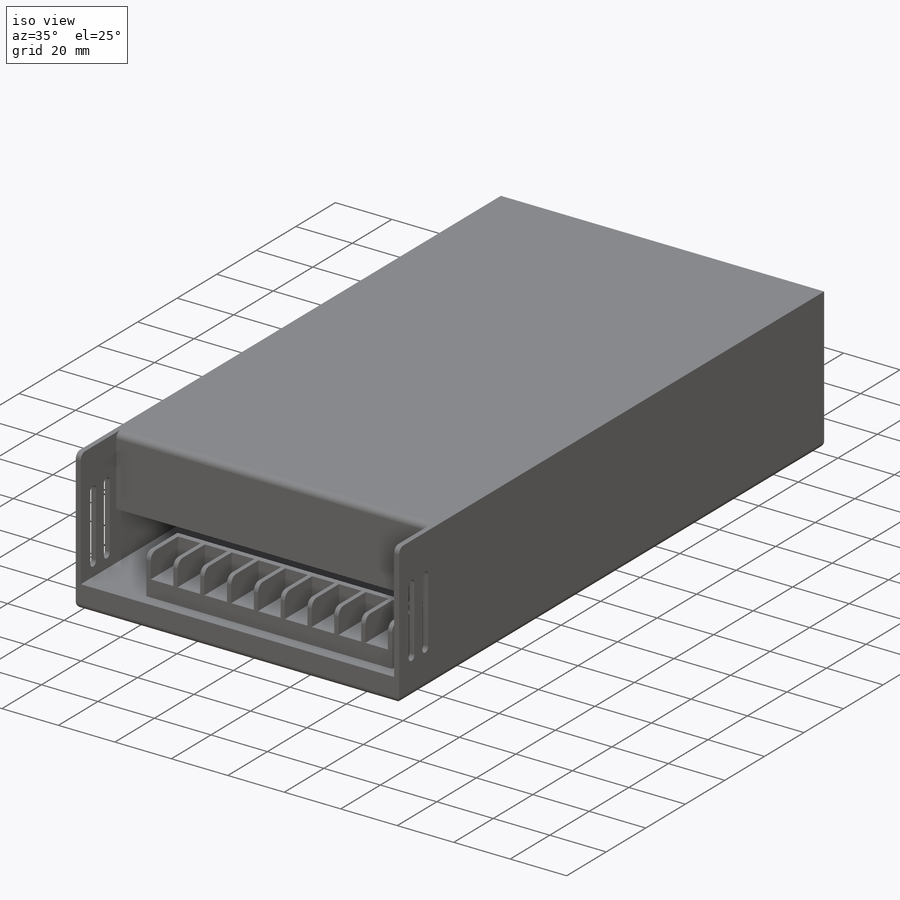
[diagram: iso view]
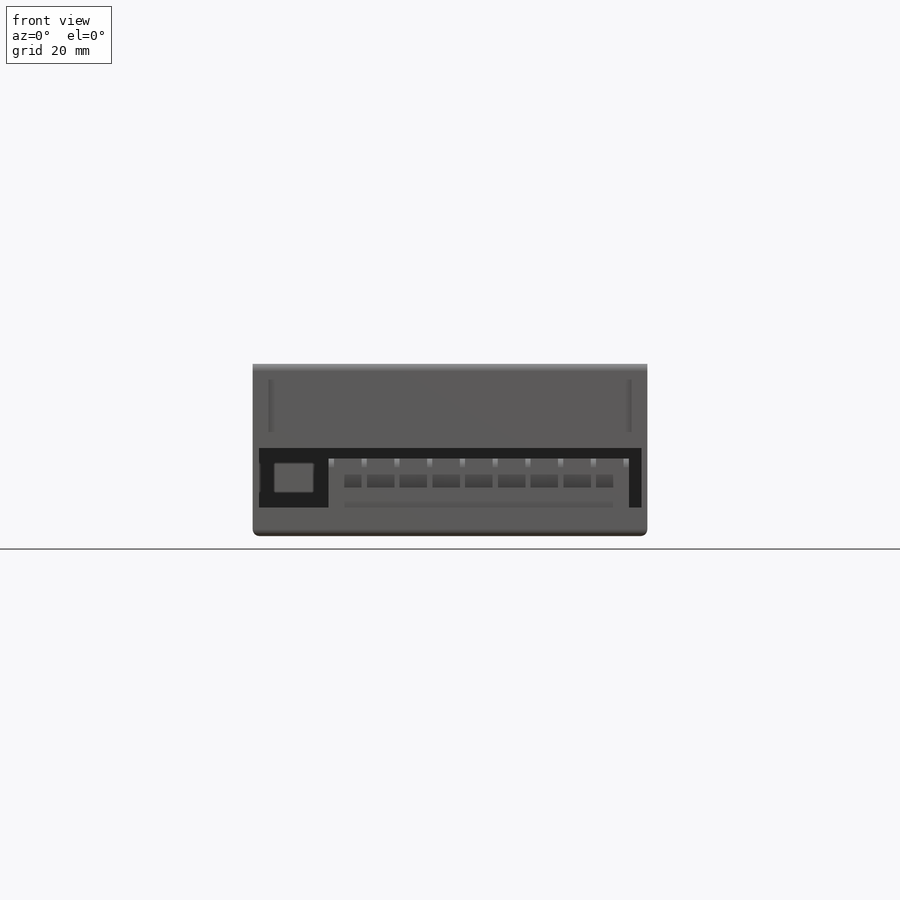
[diagram: front view]
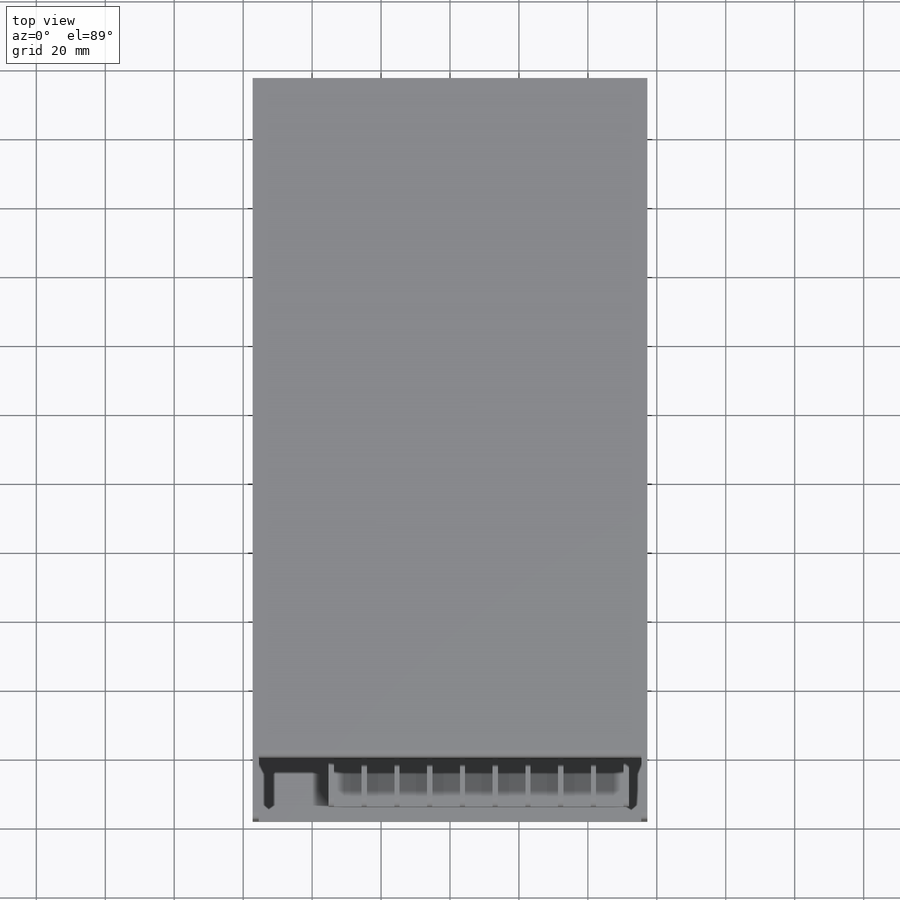
[diagram: top view]
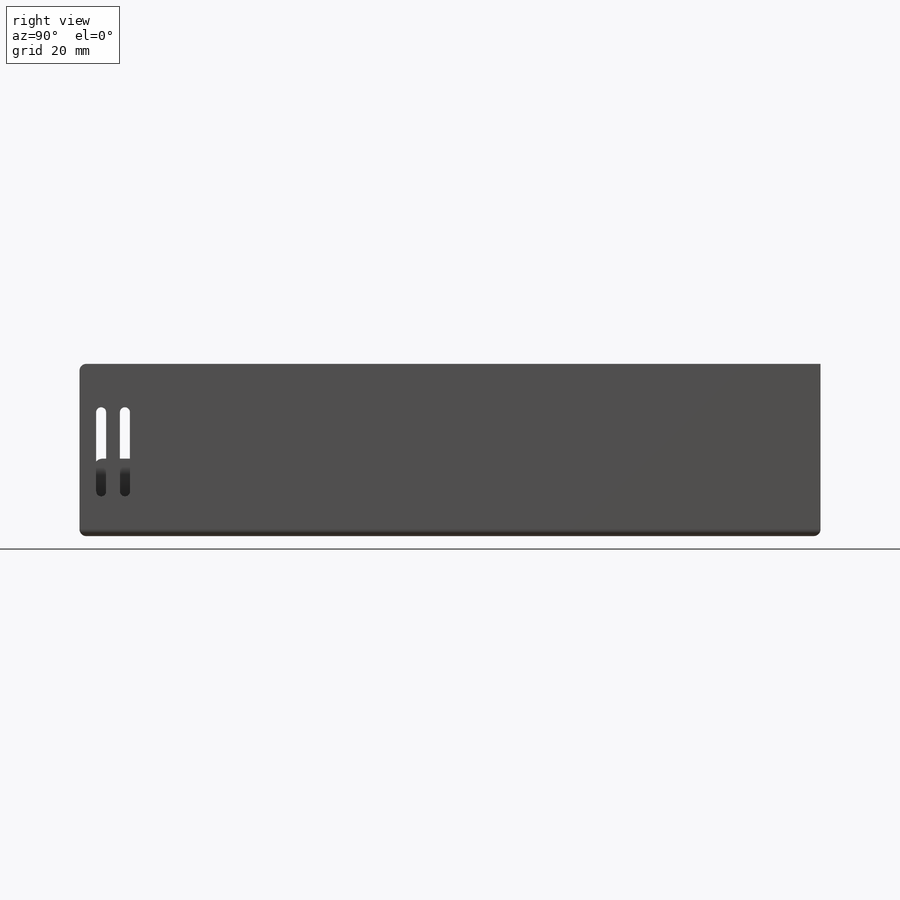
[diagram: right view]
SOLIDWORKS PART (.sldprt)
format: sldprt  version: not decoded by parser v0  size: 410,624 bytes
history: native  units: mm
features: sketch x11, cut_extrude x4, extrude x3, fillet x2, hole x2, material x1, pattern_linear x1, mirror x1 (+11 scaffold rows collapsed)
feature tree (36):
  scaffold x11  (default folders/planes/origin — collapsed)
  material  "2024 Alloy"
  sketch  "Sketch1"  dims[D1=215.0mm D2=18.0mm D3=114.5mm]
  extrude  "Boss-Extrude1"  Depth=41.75mm
  sketch  "Sketch2"  dims[D1=1.75mm]
  cut_extrude  "Cut-Extrude1"  Depth=18mm
  sketch  "Sketch3"  dims[D1=4.84mm D2=2.9mm D3=4.0mm D4=12.6mm D5=11.5mm]
  cut_extrude  "Cut-Extrude2"  [1 undecoded]
  fillet  "Fillet1"  Radius=2mm
  sketch  "Sketch4"  dims[D1=4.2mm D2=3.65mm D3=20.3mm]
  extrude  "Boss-Extrude2"  Depth=14.25mm
  sketch  "Sketch7"  dims[D1=3.0mm]
  cut_extrude  "Cut-Extrude4"  Depth=1.75mm
  fillet  "Fillet2"  Radius=2.5mm
  sketch  "Sketch6"  dims[c1.D1=5.8mm c1.D2=1.5mm c1.D3=8.0mm c2.D1=5.8mm]
  cut_extrude  "Cut-Extrude3"  [1 undecoded]
  sketch  "Sketch9"  dims[D1=0.5mm]
  extrude  "Boss-Extrude6"  Depth=1.9mm
  pattern_linear  "LPattern1"  Count1=9 Count2=1 Spacing1=9.5mm Spacing2=10mm
  hole  "M3 Clearance Hole2"  Diameter=3.4mm Depth=2mm
  sketch  "Sketch14"  dims[D1=26.75mm D2=9.75mm D3=10.5mm D4=9.75mm]
  sketch  "Sketch13"  dims[hole-wizard template sketch: 47 standard entries collapsed; hole parameters kept: c15.Hole Depth=2.0mm c15.D3=~14.816244mm c15.Drill Angle=118.0deg]
  hole  "M4 Clearance Hole1"  Diameter=4.5mm Depth=2mm
  sketch  "Sketch16"  dims[D1=32.0mm D2=12.0mm]
  sketch  "Sketch15"  dims[hole-wizard template sketch: 47 standard entries collapsed; hole parameters kept: c15.Hole Depth=2.0mm c15.D3=~14.816244mm c15.Drill Angle=118.0deg]
  mirror  "M4 Hole Other Side"
decode coverage: 21 of 24 modeling features carry decoded parameters
note: ~ marks probable driven/reference dimensions
note: 2 parameter values undecoded
note: suppression state not decoded; provenance and decode notes live in map.json
